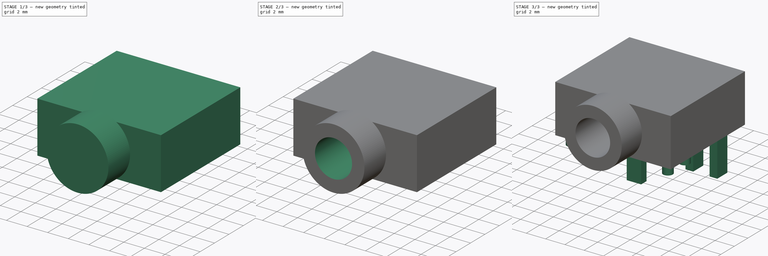
[diagram: build sequence overview — one tinted view per stage of 3, left to right]
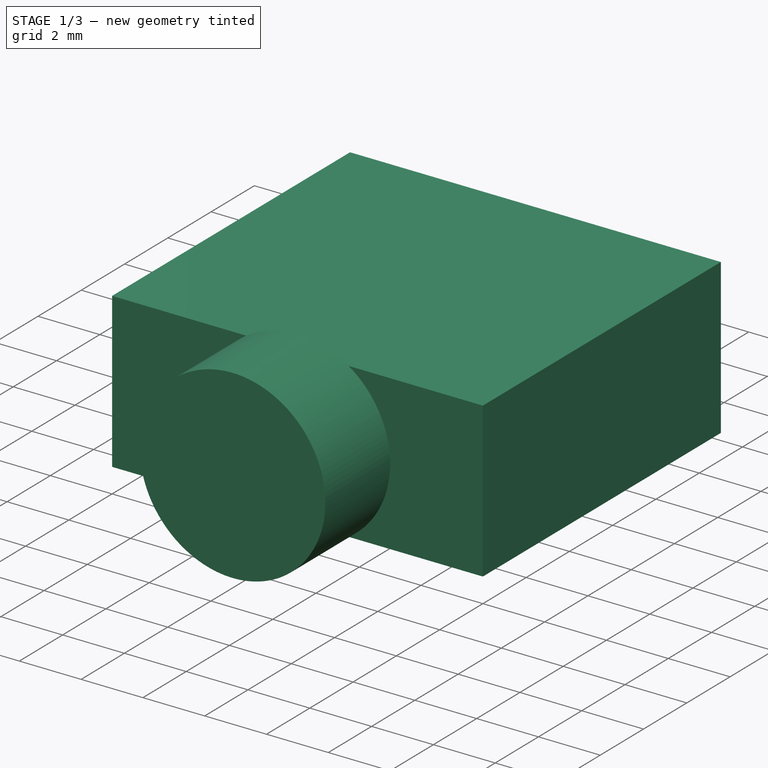
[diagram: stage 1 of 3 — iso view after this stage's code; geometry added in this stage tinted green]
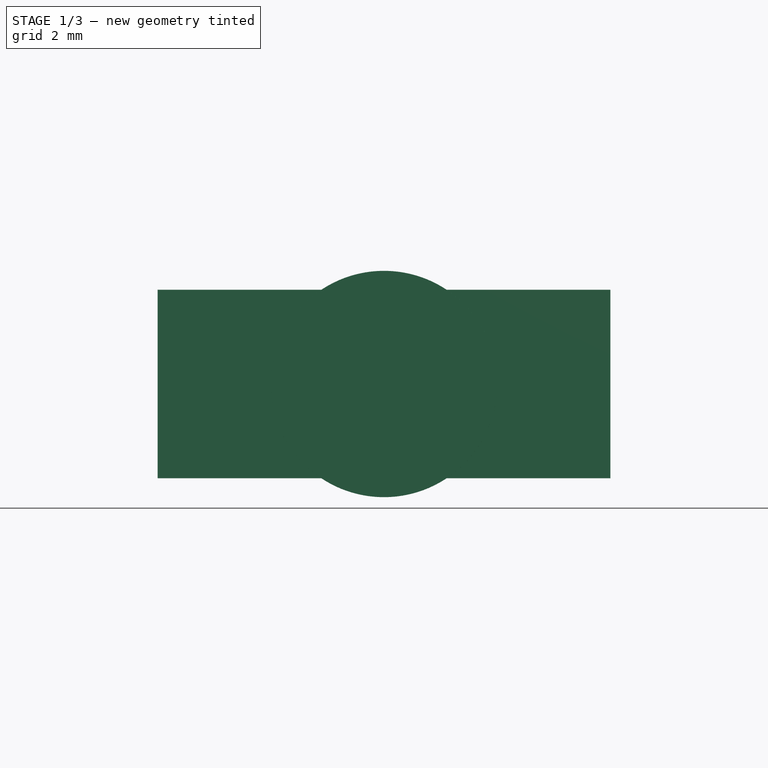
[diagram: stage 1 of 3 — front view after this stage's code; geometry added in this stage tinted green]
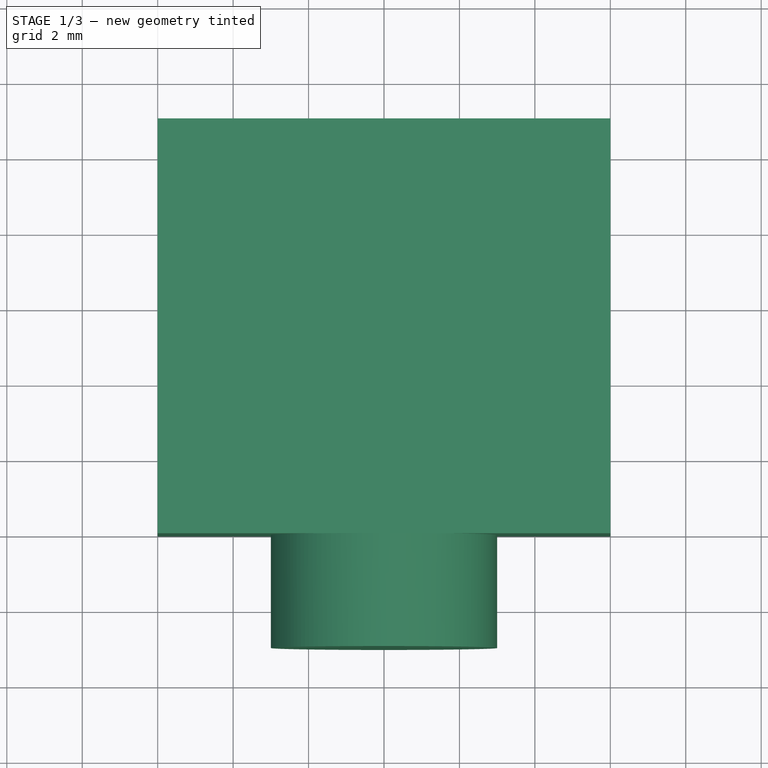
[diagram: stage 1 of 3 — top view after this stage's code; geometry added in this stage tinted green]
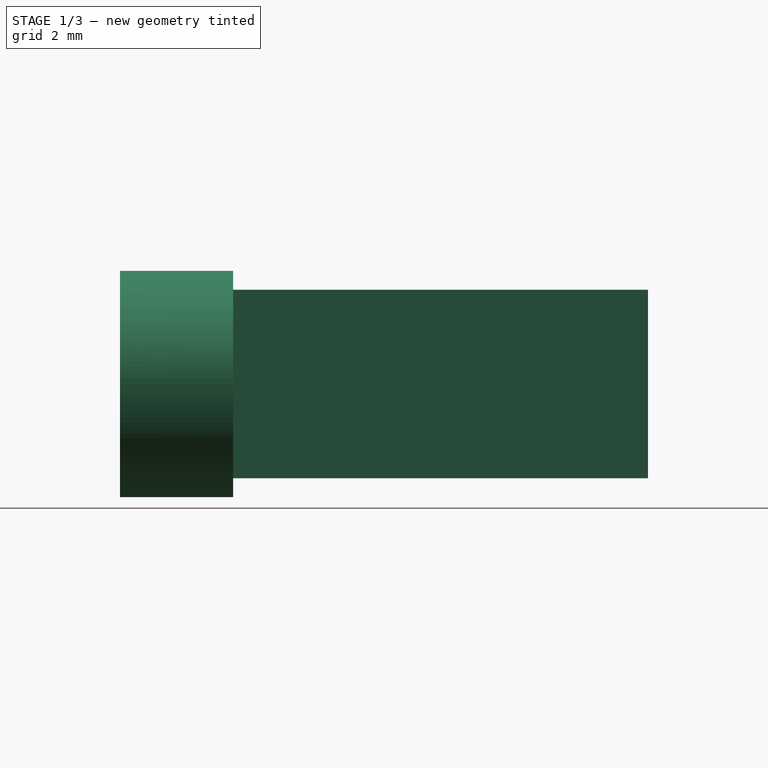
[diagram: stage 1 of 3 — right view after this stage's code; geometry added in this stage tinted green]
FCSTD DOCUMENT  (FreeCAD 0.16R6712 (Git))
Label: JC-128
License: CC-BY 3.0
LicenseURL: http://creativecommons.org/licenses/by/3.0/
objects: Sketcher::SketchObject×5, PartDesign::Pad×4, PartDesign::Pocket×1
note: 15 computed .brp shape members not serialized (recipe doc carries the construction recipe); baked Part::Feature solids carry a one-line shape summary decoded from their .brp

FEATURE [Sketcher::SketchObject] Sketch
  sketch-geometry (4):
    g0: LineSegment StartX=-12 StartY=11 StartZ=0 EndX=0 EndY=11 EndZ=0
    g1: LineSegment StartX=0 StartY=11 StartZ=0 EndX=0 EndY=0 EndZ=0
    g2: LineSegment StartX=0 StartY=0 StartZ=0 EndX=-12 EndY=0 EndZ=0
    g3: LineSegment StartX=-12 StartY=0 StartZ=0 EndX=-12 EndY=11 EndZ=0
  constraints (12):
    c: Coincident(g0,g1)
    c: Coincident(g1,g2)
    c: Coincident(g2,g3)
    c: Coincident(g3,g0)
    c: Horizontal(g0)
    c: Horizontal(g2)
    c: Vertical(g1)
    c: Vertical(g3)
    c: DistanceX(g0) = 12
    c: DistanceY(g3) = 11
    c: DistanceX(g1) = 0
    c: DistanceY(g1) = 0
FEATURE [PartDesign::Pad] Pad
  Length = 5
  Length2 = 100
  Sketch = -> Sketch
  Type = 0
FEATURE [Sketcher::SketchObject] Sketch001
  Placement = pos=(0,0,0) rot=(1,0,0;1.5708rad)
  Support = -> Pad [Face3]
  sketch-geometry (1):
    g0: Circle CenterX=-6 CenterY=2.5 CenterZ=0 NormalX=0 NormalY=0 NormalZ=1 Radius=3
  constraints (3):
    c: Radius(g0) = 3
    c: DistanceX(g0) = -6
    c: DistanceY(g0) = 2.5
FEATURE [PartDesign::Pad] Pad001
  Length = 3
  Length2 = 100
  Sketch = -> Sketch001
  Type = 0
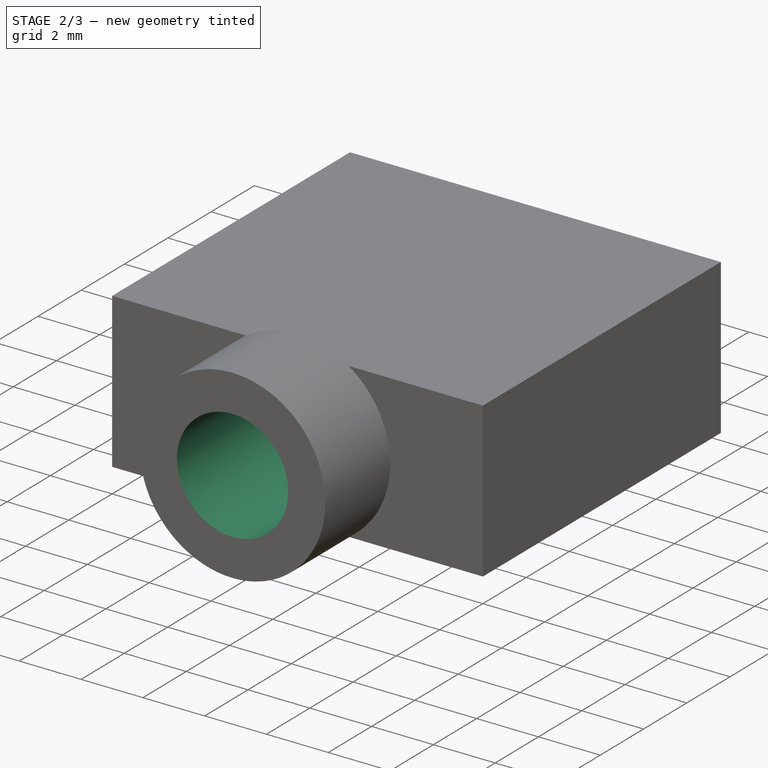
[diagram: stage 2 of 3 — iso view after this stage's code; geometry added in this stage tinted green]
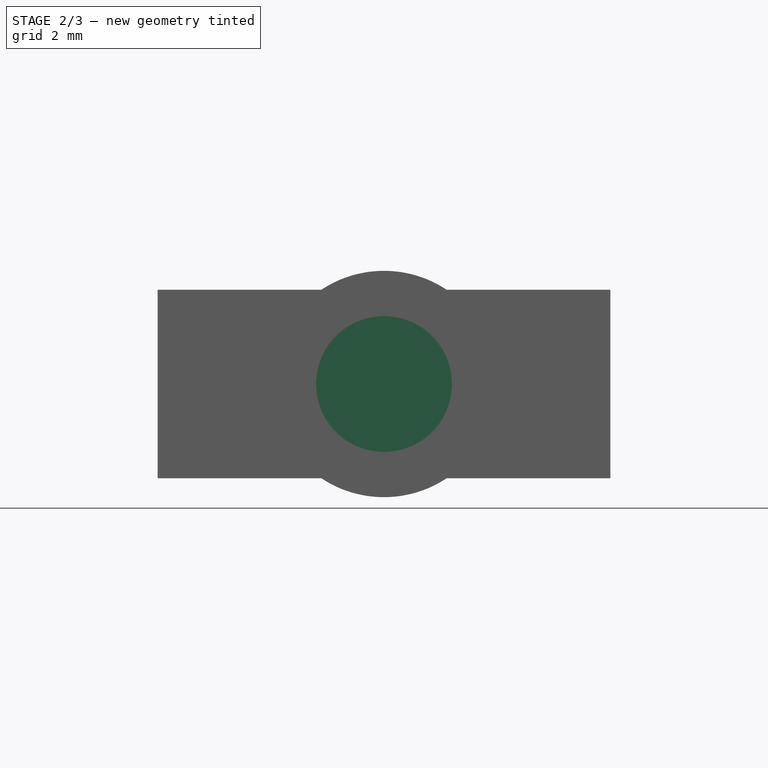
[diagram: stage 2 of 3 — front view after this stage's code; geometry added in this stage tinted green]
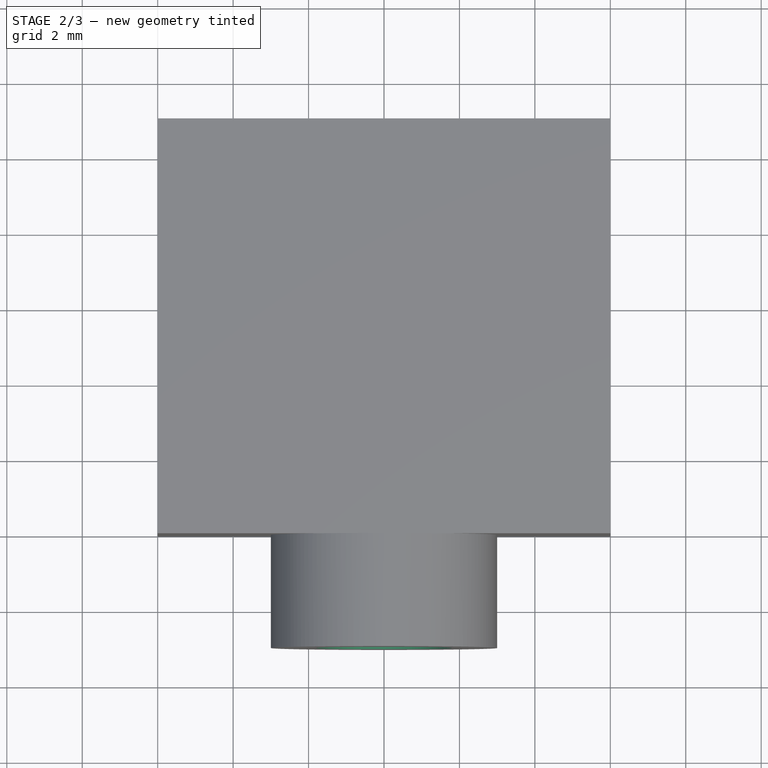
[diagram: stage 2 of 3 — top view after this stage's code; geometry added in this stage tinted green]
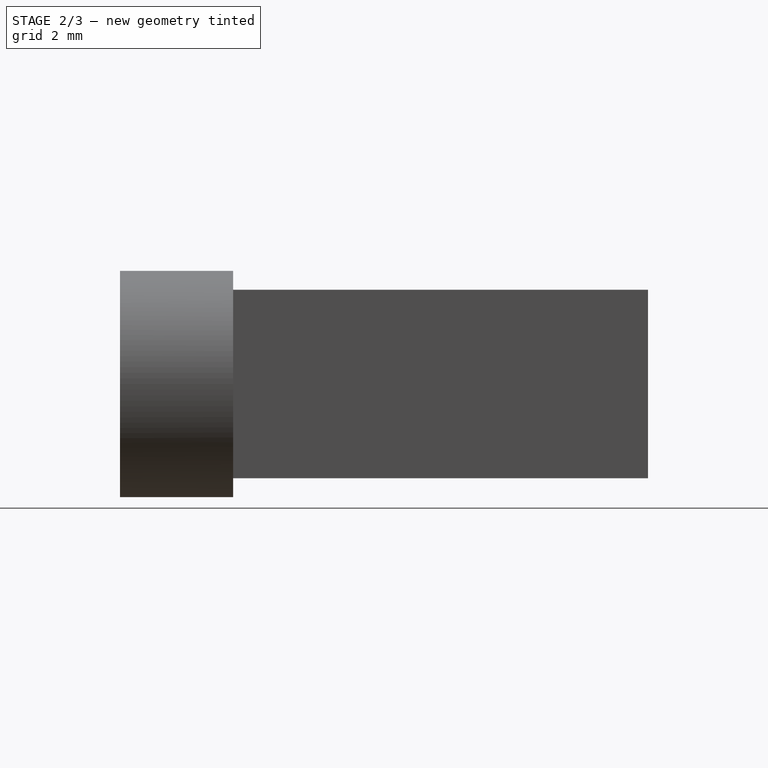
[diagram: stage 2 of 3 — right view after this stage's code; geometry added in this stage tinted green]
FEATURE [Sketcher::SketchObject] Sketch004
  Placement = pos=(0,-3,0) rot=(1,0,0;1.5708rad)
  Support = -> Pad001 [Face11]
  sketch-geometry (1):
    g0: Circle CenterX=-6 CenterY=2.5 CenterZ=0 NormalX=0 NormalY=0 NormalZ=1 Radius=1.8
  constraints (3):
    c: Radius(g0) = 1.8
    c: DistanceX(g0) = -6
    c: DistanceY(g0) = 2.5
FEATURE [PartDesign::Pocket] Pocket
  Length = 8
  Sketch = -> Sketch004
  Type = 0
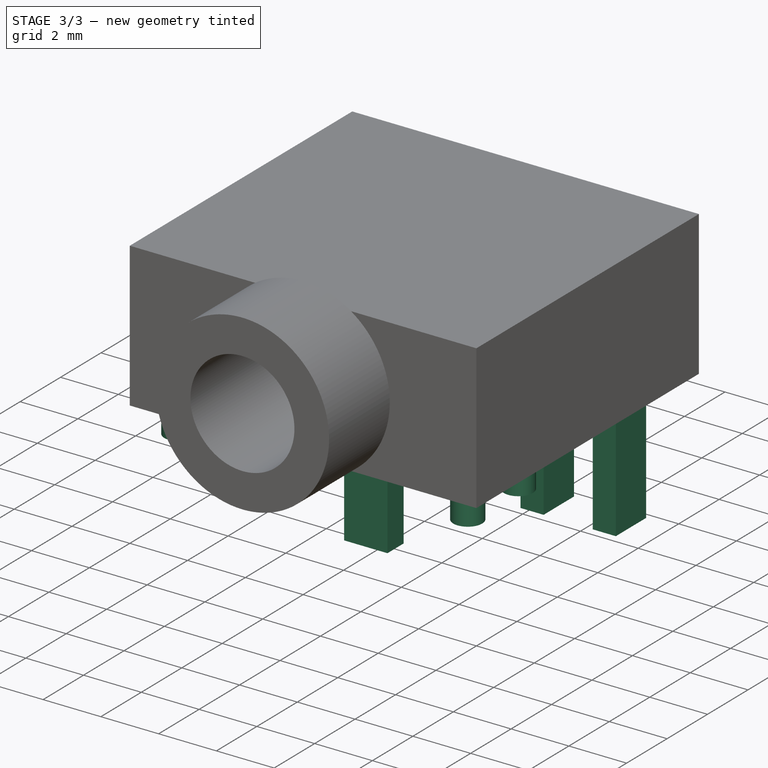
[diagram: stage 3 of 3 — iso view after this stage's code; geometry added in this stage tinted green]
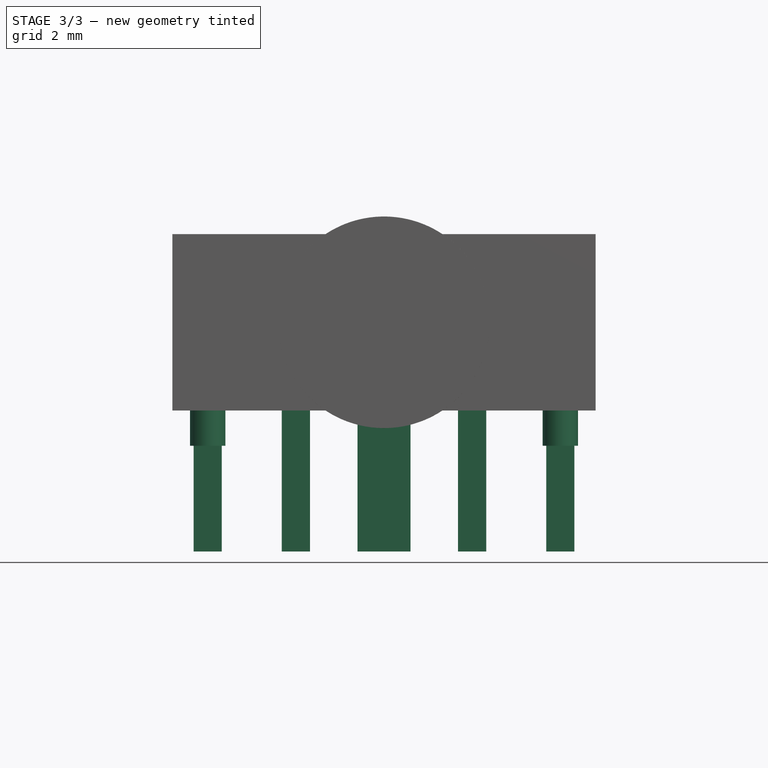
[diagram: stage 3 of 3 — front view after this stage's code; geometry added in this stage tinted green]
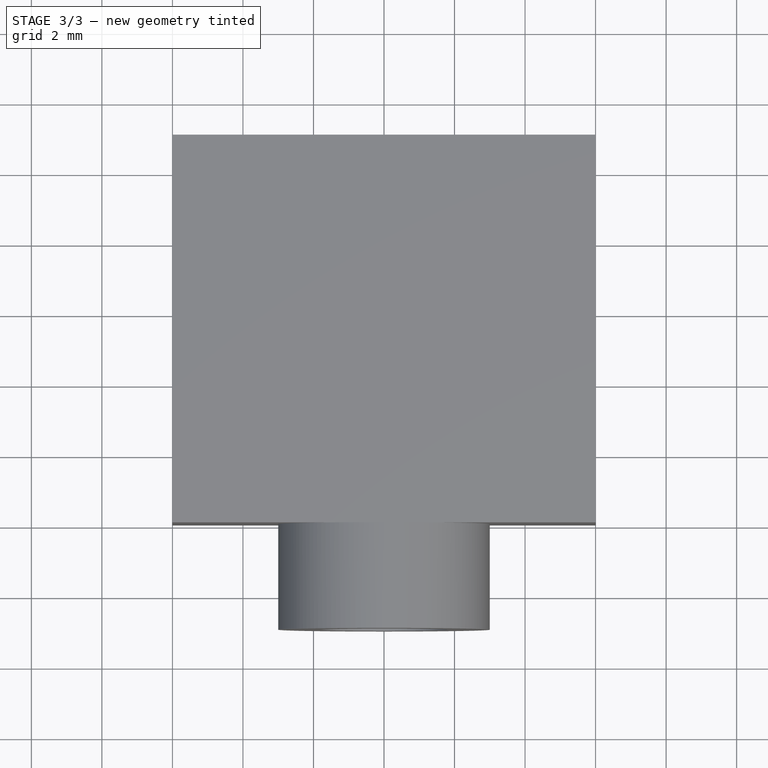
[diagram: stage 3 of 3 — top view after this stage's code; geometry added in this stage tinted green]
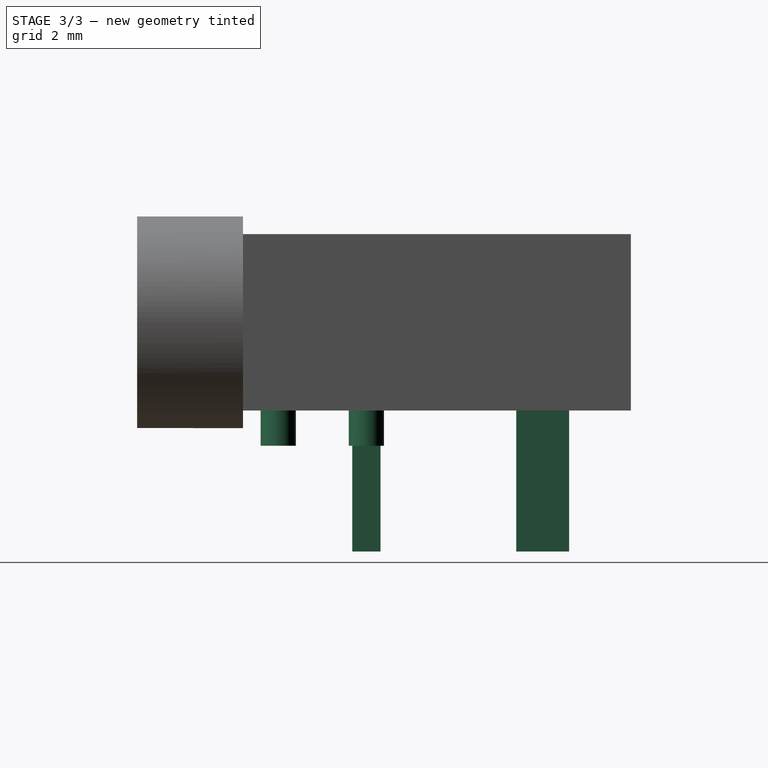
[diagram: stage 3 of 3 — right view after this stage's code; geometry added in this stage tinted green]
FEATURE [Sketcher::SketchObject] Sketch002
  Placement = pos=(0,0,0) rot=(1,0,0;3.14159rad)
  sketch-geometry (5):
    g0: Circle CenterX=-11 CenterY=-1 CenterZ=0 NormalX=0 NormalY=0 NormalZ=1 Radius=0.5
    g1: Circle CenterX=-1 CenterY=-1 CenterZ=0 NormalX=0 NormalY=0 NormalZ=1 Radius=0.5
    g2: Circle CenterX=-11 CenterY=-3.5 CenterZ=0 NormalX=0 NormalY=0 NormalZ=1 Radius=0.5
    g3: Circle CenterX=-1 CenterY=-3.5 CenterZ=0 NormalX=0 NormalY=0 NormalZ=1 Radius=0.5
    g4: Circle CenterX=-6 CenterY=-8.5 CenterZ=0 NormalX=0 NormalY=0 NormalZ=1 Radius=0.5
  constraints (15):
    c: Radius(g0) = 0.5
    c: Radius(g1) = 0.5
    c: Radius(g2) = 0.5
    c: Radius(g3) = 0.5
    c: Radius(g4) = 0.5
    c: DistanceX(g4) = -6
    c: DistanceY(g4) = -8.5
    c: DistanceX(g0) = -11
    c: DistanceY(g0) = -1
    c: DistanceX(g2) = -11
    c: DistanceY(g2) = -3.5
    c: DistanceX(g1) = -1
    c: DistanceY(g1) = -1
    c: DistanceX(g3) = -1
    c: DistanceY(g3) = -3.5
FEATURE [Sketcher::SketchObject] Sketch003
  Placement = pos=(0,0,0) rot=(1,0,0;3.14159rad)
  sketch-geometry (20):
    g0: LineSegment StartX=-11.4 StartY=-7.75 StartZ=0 EndX=-10.6 EndY=-7.75 EndZ=0
    g1: LineSegment StartX=-10.6 StartY=-7.75 StartZ=0 EndX=-10.6 EndY=-9.25 EndZ=0
    g2: LineSegment StartX=-10.6 StartY=-9.25 StartZ=0 EndX=-11.4 EndY=-9.25 EndZ=0
    g3: LineSegment StartX=-11.4 StartY=-9.25 StartZ=0 EndX=-11.4 EndY=-7.75 EndZ=0
    g4: LineSegment StartX=-8.9 StartY=-7.75 StartZ=0 EndX=-8.1 EndY=-7.75 EndZ=0
    g5: LineSegment StartX=-8.1 StartY=-7.75 StartZ=0 EndX=-8.1 EndY=-9.25 EndZ=0
    g6: LineSegment StartX=-8.1 StartY=-9.25 StartZ=0 EndX=-8.9 EndY=-9.25 EndZ=0
    g7: LineSegment StartX=-8.9 StartY=-9.25 StartZ=0 EndX=-8.9 EndY=-7.75 EndZ=0
    g8: LineSegment StartX=-3.9 StartY=-7.75 StartZ=0 EndX=-3.1 EndY=-7.75 EndZ=0
    g9: LineSegment StartX=-3.1 StartY=-7.75 StartZ=0 EndX=-3.1 EndY=-9.25 EndZ=0
    g10: LineSegment StartX=-3.1 StartY=-9.25 StartZ=0 EndX=-3.9 EndY=-9.25 EndZ=0
    g11: LineSegment StartX=-3.9 StartY=-9.25 StartZ=0 EndX=-3.9 EndY=-7.75 EndZ=0
    g12: LineSegment StartX=-1.4 StartY=-7.75 StartZ=0 EndX=-0.6 EndY=-7.75 EndZ=0
    g13: LineSegment StartX=-0.6 StartY=-7.75 StartZ=0 EndX=-0.6 EndY=-9.25 EndZ=0
    g14: LineSegment StartX=-0.6 StartY=-9.25 StartZ=0 EndX=-1.4 EndY=-9.25 EndZ=0
    g15: LineSegment StartX=-1.4 StartY=-9.25 StartZ=0 EndX=-1.4 EndY=-7.75 EndZ=0
    g16: LineSegment StartX=-6.75 StartY=-3.1 StartZ=0 EndX=-5.25 EndY=-3.1 EndZ=0
    g17: LineSegment StartX=-5.25 StartY=-3.1 StartZ=0 EndX=-5.25 EndY=-3.9 EndZ=0
    g18: LineSegment StartX=-5.25 StartY=-3.9 StartZ=0 EndX=-6.75 EndY=-3.9 EndZ=0
    g19: LineSegment StartX=-6.75 StartY=-3.9 StartZ=0 EndX=-6.75 EndY=-3.1 EndZ=0
  constraints (60):
    c: Coincident(g0,g1)
    c: Coincident(g1,g2)
    c: Coincident(g2,g3)
    c: Coincident(g3,g0)
    c: Horizontal(g0)
    c: Horizontal(g2)
    c: Vertical(g1)
    c: Vertical(g3)
    c: DistanceX(g0) = 0.8
    c: DistanceY(g1) = -1.5
    c: DistanceX(g0) = -10.6
    c: DistanceY(g0) = -7.75
    c: Coincident(g4,g5)
    c: Coincident(g5,g6)
    c: Coincident(g6,g7)
    c: Coincident(g7,g4)
    c: Horizontal(g4)
    c: Horizontal(g6)
    c: Vertical(g5)
    c: Vertical(g7)
    c: Coincident(g8,g9)
    c: Coincident(g9,g10)
    c: Coincident(g10,g11)
    c: Coincident(g11,g8)
    c: Horizontal(g8)
    c: Horizontal(g10)
    c: Vertical(g9)
    c: Vertical(g11)
    c: Coincident(g12,g13)
    c: Coincident(g13,g14)
    c: Coincident(g14,g15)
    c: Coincident(g15,g12)
    c: Horizontal(g12)
    c: Horizontal(g14)
    c: Vertical(g13)
    c: Vertical(g15)
    c: Coincident(g16,g17)
    c: Coincident(g17,g18)
    c: Coincident(g18,g19)
    c: Coincident(g19,g16)
    c: Horizontal(g16)
    c: Horizontal(g18)
    c: Vertical(g17)
    c: Vertical(g19)
    c: Equal(g0,g4)
    c: Equal(g4,g8)
    c: Equal(g8,g12)
    c: Equal(g1,g5)
    c: Equal(g5,g9)
    c: Equal(g9,g13)
    c: DistanceX(g4) = -8.1
    c: DistanceY(g4) = -7.75
    c: DistanceX(g8) = -3.1
    c: DistanceY(g8) = -7.75
    c: DistanceX(g12) = -0.6
    c: DistanceY(g12) = -7.75
    c: DistanceX(g16) = -5.25
    c: DistanceY(g16) = -3.1
    c: Equal(g17,g12)
    c: Equal(g16,g15)
FEATURE [PartDesign::Pad] Pad002
  Length = 1
  Length2 = 100
  Placement = pos=(0,0,0) rot=(1,0,0;3.14159rad)
  Sketch = -> Sketch002
  Type = 0
FEATURE [PartDesign::Pad] Pad003
  Length = 4
  Length2 = 100
  Placement = pos=(0,0,0) rot=(1,0,0;3.14159rad)
  Sketch = -> Sketch003
  Type = 0
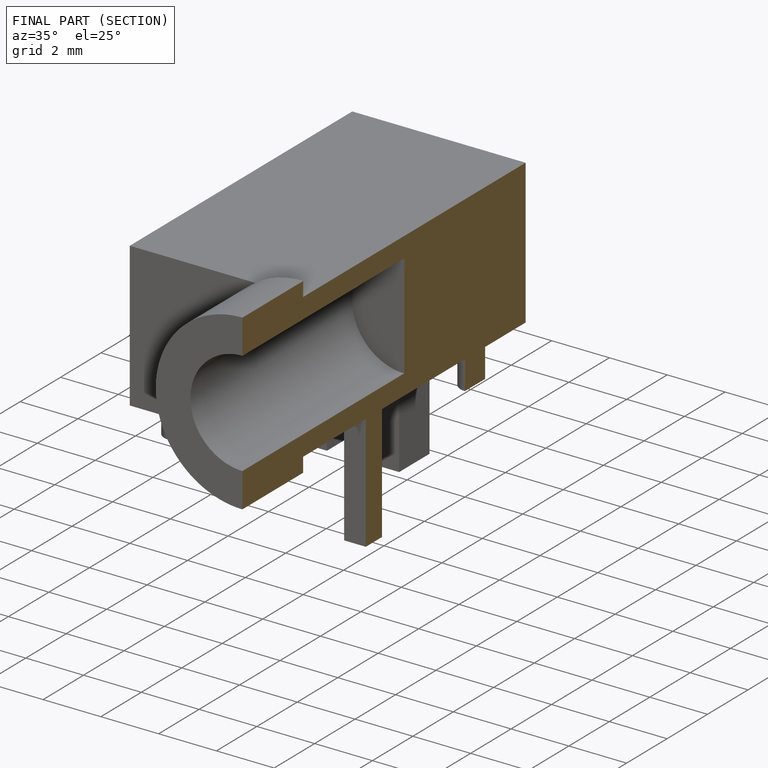
[diagram: finished part — half-section view (interior)]
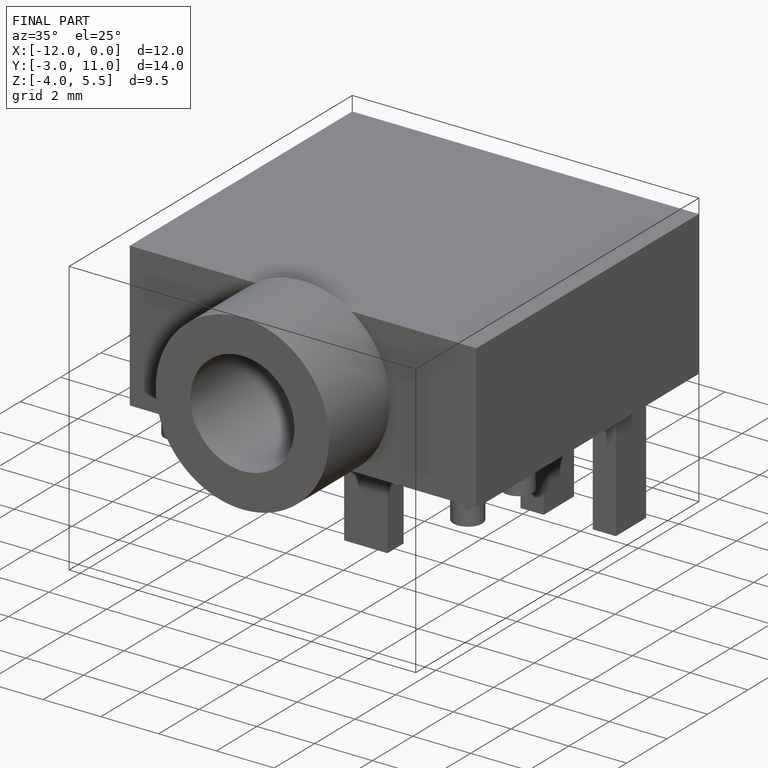
[diagram: finished part — iso view with bounding-box wireframe]
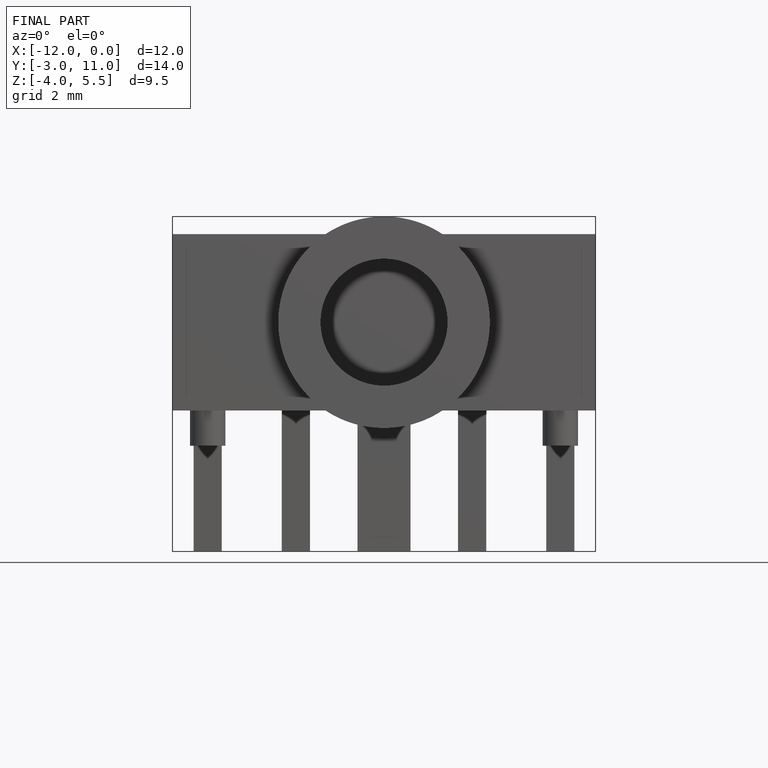
[diagram: finished part — front view with bounding-box wireframe]
